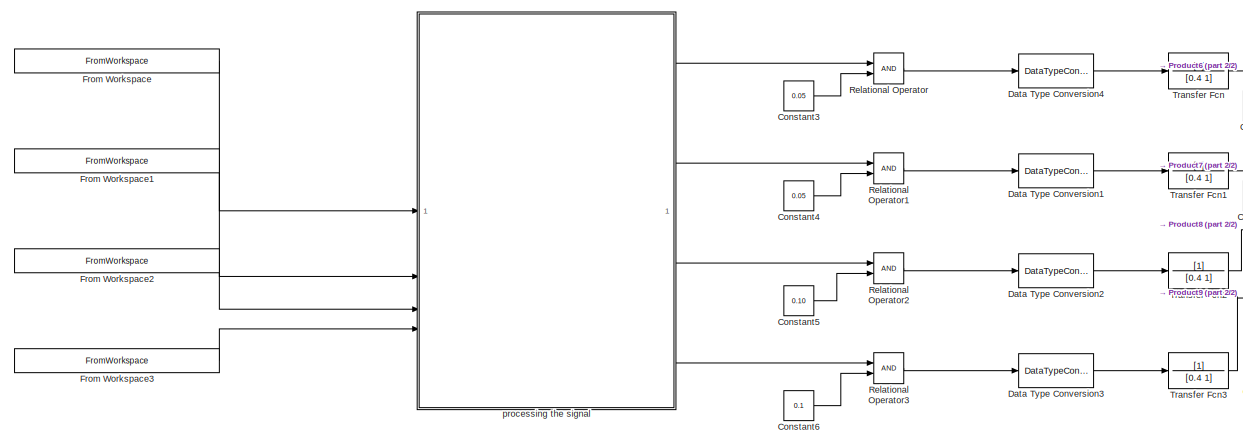
[diagram: root canvas - part 1/2, left side, full height]
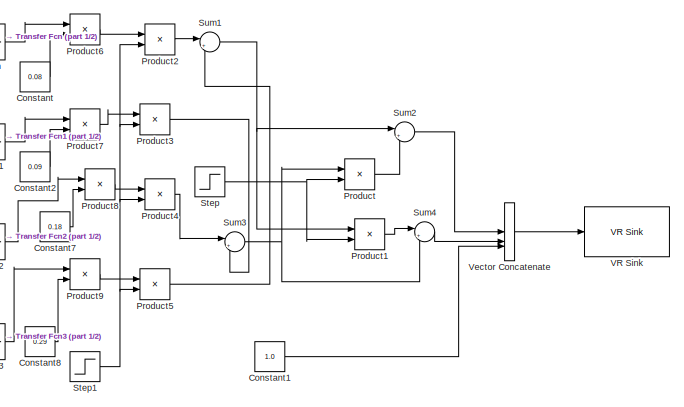
[diagram: root canvas - part 2/2, right side, full height]
MODEL slx_7b88e0eeb97f
KIND model
CONFIG AbsTol = auto
CONFIG EnableMultiTasking = off
CONFIG FixedStep = auto
CONFIG MaxStep = auto
CONFIG MinStep = auto
CONFIG RelTol = 1e-3
CONFIG SampleTimeConstraint = Unconstrained
CONFIG SolverName = VariableStepAuto
CONFIG StartTime = 0.0
CONFIG StopTime = 30.0
BLOCK [Constant] Constant
  Value = 0.08
BLOCK [Constant] Constant1
  Value = 1.0
BLOCK [Constant] Constant2
  Value = 0.09
BLOCK [Constant] Constant3
  Value = 0.05
BLOCK [Constant] Constant4
  Value = 0.05
BLOCK [Constant] Constant5
  Value = 0.10
BLOCK [Constant] Constant6
  Value = 0.1
BLOCK [Constant] Constant7
  Value = 0.18
BLOCK [Constant] Constant8
  Value = 0.29
BLOCK [DataTypeConversion] Data Type Conversion1
  OutDataTypeStr = double
  OutMax = [1000]
  OutMin = [0.2]
  RndMeth = Floor
  SaturateOnIntegerOverflow = off
BLOCK [DataTypeConversion] Data Type Conversion2
  OutDataTypeStr = double
  OutMax = [1000]
  OutMin = [0.2]
  RndMeth = Floor
  SaturateOnIntegerOverflow = off
BLOCK [DataTypeConversion] Data Type Conversion3
  OutDataTypeStr = double
  OutMax = [1000]
  OutMin = [0.2]
  RndMeth = Floor
  SaturateOnIntegerOverflow = off
BLOCK [DataTypeConversion] Data Type Conversion4
  OutDataTypeStr = double
  OutMax = [1000]
  OutMin = [0.2]
  RndMeth = Floor
  SaturateOnIntegerOverflow = off
BLOCK [FromWorkspace] From Workspace
  SampleTime = 1/1000
  VariableName = [ES2_emg.time,ES2_emg.signals(:,1)]
BLOCK [FromWorkspace] From Workspace1
  SampleTime = 1/1000
  VariableName = [ES2_emg.time,ES2_emg.signals(:,2)]
BLOCK [FromWorkspace] From Workspace2
  SampleTime = 1/1000
  VariableName = [ES2_emg.time,ES2_emg.signals(:,3)]
BLOCK [FromWorkspace] From Workspace3
  SampleTime = 1/1000
  VariableName = [ES2_emg.time,ES2_emg.signals(:,4)]
BLOCK [Product] Product
BLOCK [Product] Product1
BLOCK [Product] Product2
BLOCK [Product] Product3
BLOCK [Product] Product4
BLOCK [Product] Product5
BLOCK [Product] Product6
BLOCK [Product] Product7
BLOCK [Product] Product8
BLOCK [Product] Product9
BLOCK [RelationalOperator] Relational Operator
  InputSameDT = off
  OutDataTypeStr = boolean
  RndMeth = Simplest
BLOCK [RelationalOperator] Relational Operator1
  InputSameDT = off
  OutDataTypeStr = boolean
  RndMeth = Simplest
BLOCK [RelationalOperator] Relational Operator2
  InputSameDT = off
  OutDataTypeStr = boolean
  RndMeth = Simplest
BLOCK [RelationalOperator] Relational Operator3
  InputSameDT = off
  OutDataTypeStr = boolean
  RndMeth = Simplest
BLOCK [Step] Step
  SampleTime = 0
  Time = 15
BLOCK [Step] Step1
  After = ((2)^-0.5)
  Before = 1
  SampleTime = 0
  Time = 14
BLOCK [Sum] Sum1
  Inputs = |+-
BLOCK [Sum] Sum2
  Inputs = |+-
BLOCK [Sum] Sum3
  Inputs = |+-
BLOCK [Sum] Sum4
  Inputs = |++
BLOCK [TransferFcn] Transfer Fcn
  Denominator = [0.4 1]
BLOCK [TransferFcn] Transfer Fcn1
  Denominator = [0.4 1]
BLOCK [TransferFcn] Transfer Fcn2
  Denominator = [0.4 1]
BLOCK [TransferFcn] Transfer Fcn3
  Denominator = [0.4 1]
BLOCK [Reference] VR Sink  REF=vrlib/VR Sink
  InstantiateOnLoad = on
  SourceBlock = vrlib/VR Sink
  SourceType = Virtual Reality Sink
BLOCK [Concatenate] Vector Concatenate
  NumInputs = 3
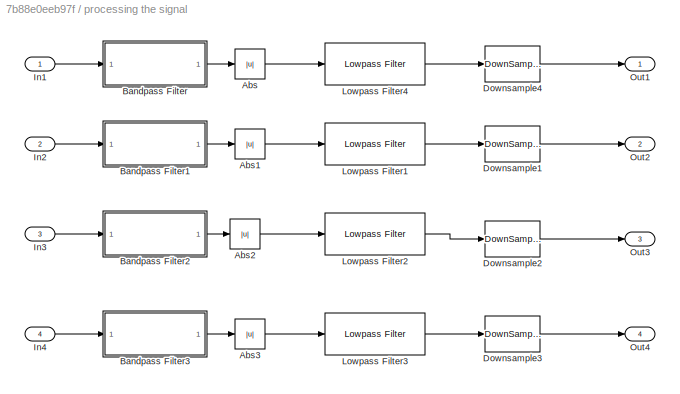
BLOCK [SubSystem] processing the signal
BLOCK [Abs] processing the signal/Abs
  SaturateOnIntegerOverflow = off
BLOCK [Abs] processing the signal/Abs1
  SaturateOnIntegerOverflow = off
BLOCK [Abs] processing the signal/Abs2
  SaturateOnIntegerOverflow = off
BLOCK [Abs] processing the signal/Abs3
  SaturateOnIntegerOverflow = off
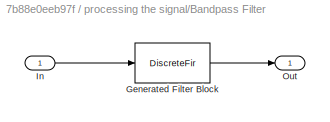
BLOCK [SubSystem] processing the signal/Bandpass Filter
  CopyFcn = fdesignblkfcn(gcbh, {'CopyFcn'});
  DialogController = fdesignblkfcn
  InitFcn = fdesignblkfcn(gcbh, {'InitFcn'});
  UserDataPersistent = on
BLOCK [DiscreteFir] processing the signal/Bandpass Filter/Generated Filter Block
  Coefficients = [0.0858980048566166249 0.0520786279754757025 -0.0994053436914434235 0.0135831519514875414 -0.0538866276248172876 0.00387436549081726384 -0.028401820868103278 0.00254018756536164092 -0.0104438154349616504 0.0024745447461073781 0.00401687504188876464 0.00235138339428692892 0.0153358382804895353 0.00309905498380235291 0.0226439192297243561 0.00584913788288324125 0.0251768114891905807 0.01108104721793...<+1868ch>  <repeated x4 — deduplicated; at blocks: Generated Filter Block>
  InputPortMap = u0
  InputProcessing = Columns as channels (frame based)
  OutputPortMap = o0
  Tag = BlockMethodSubSystem
BLOCK [Inport] processing the signal/Bandpass Filter/In
BLOCK [Outport] processing the signal/Bandpass Filter/Out
  VectorParamsAs1DForOutWhenUnconnected = off
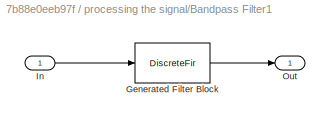
BLOCK [SubSystem] processing the signal/Bandpass Filter1
  CopyFcn = fdesignblkfcn(gcbh, {'CopyFcn'});
  DialogController = fdesignblkfcn
  InitFcn = fdesignblkfcn(gcbh, {'InitFcn'});
  UserDataPersistent = on
BLOCK [DiscreteFir] processing the signal/Bandpass Filter1/Generated Filter Block
  InputPortMap = u0
  InputProcessing = Columns as channels (frame based)
  OutputPortMap = o0
  Tag = BlockMethodSubSystem
BLOCK [Inport] processing the signal/Bandpass Filter1/In
BLOCK [Outport] processing the signal/Bandpass Filter1/Out
  VectorParamsAs1DForOutWhenUnconnected = off
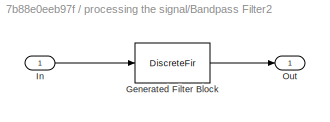
BLOCK [SubSystem] processing the signal/Bandpass Filter2
  CopyFcn = fdesignblkfcn(gcbh, {'CopyFcn'});
  DialogController = fdesignblkfcn
  InitFcn = fdesignblkfcn(gcbh, {'InitFcn'});
  UserDataPersistent = on
BLOCK [DiscreteFir] processing the signal/Bandpass Filter2/Generated Filter Block
  InputPortMap = u0
  InputProcessing = Columns as channels (frame based)
  OutputPortMap = o0
  Tag = BlockMethodSubSystem
BLOCK [Inport] processing the signal/Bandpass Filter2/In
BLOCK [Outport] processing the signal/Bandpass Filter2/Out
  VectorParamsAs1DForOutWhenUnconnected = off
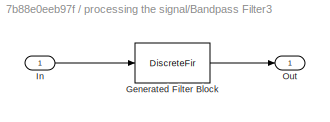
BLOCK [SubSystem] processing the signal/Bandpass Filter3
  CopyFcn = fdesignblkfcn(gcbh, {'CopyFcn'});
  DialogController = fdesignblkfcn
  InitFcn = fdesignblkfcn(gcbh, {'InitFcn'});
  UserDataPersistent = on
BLOCK [DiscreteFir] processing the signal/Bandpass Filter3/Generated Filter Block
  InputPortMap = u0
  InputProcessing = Columns as channels (frame based)
  OutputPortMap = o0
  Tag = BlockMethodSubSystem
BLOCK [Inport] processing the signal/Bandpass Filter3/In
BLOCK [Outport] processing the signal/Bandpass Filter3/Out
  VectorParamsAs1DForOutWhenUnconnected = off
BLOCK [DownSample] processing the signal/Downsample1
  InputProcessing = Elements as channels (sample based)
  N = 100
  RateOptions = Allow multirate processing
BLOCK [DownSample] processing the signal/Downsample2
  InputProcessing = Elements as channels (sample based)
  N = 100
  RateOptions = Allow multirate processing
BLOCK [DownSample] processing the signal/Downsample3
  InputProcessing = Elements as channels (sample based)
  N = 100
  RateOptions = Allow multirate processing
BLOCK [DownSample] processing the signal/Downsample4
  InputProcessing = Elements as channels (sample based)
  N = 100
  RateOptions = Allow multirate processing
BLOCK [Inport] processing the signal/In1
BLOCK [Inport] processing the signal/In2
  Port = 2
BLOCK [Inport] processing the signal/In3
  Port = 3
BLOCK [Inport] processing the signal/In4
  Port = 4
BLOCK [Reference] processing the signal/Lowpass Filter1  REF=dspfdesign/Lowpass Filter
  SourceBlock = dspfdesign/Lowpass Filter
  SourceType = dsp.simulink.LowpassFilter
BLOCK [Reference] processing the signal/Lowpass Filter2  REF=dspfdesign/Lowpass Filter
  SourceBlock = dspfdesign/Lowpass Filter
  SourceType = dsp.simulink.LowpassFilter
BLOCK [Reference] processing the signal/Lowpass Filter3  REF=dspfdesign/Lowpass Filter
  SourceBlock = dspfdesign/Lowpass Filter
  SourceType = dsp.simulink.LowpassFilter
BLOCK [Reference] processing the signal/Lowpass Filter4  REF=dspfdesign/Lowpass Filter
  SourceBlock = dspfdesign/Lowpass Filter
  SourceType = dsp.simulink.LowpassFilter
BLOCK [Outport] processing the signal/Out1
BLOCK [Outport] processing the signal/Out2
  Port = 2
BLOCK [Outport] processing the signal/Out3
  Port = 3
BLOCK [Outport] processing the signal/Out4
  Port = 4
LINE Constant1:1 -> Vector Concatenate:3
LINE Constant2:1 -> Product7:2
LINE Constant3:1 -> Relational Operator:2
LINE Constant4:1 -> Relational Operator1:2
LINE Constant5:1 -> Relational Operator2:2
LINE Constant6:1 -> Relational Operator3:2
LINE Constant7:1 -> Product8:2
LINE Constant8:1 -> Product9:2
LINE Constant:1 -> Product6:2
LINE Data Type Conversion1:1 -> Transfer Fcn1:1
LINE Data Type Conversion2:1 -> Transfer Fcn2:1
LINE Data Type Conversion3:1 -> Transfer Fcn3:1
LINE Data Type Conversion4:1 -> Transfer Fcn:1
LINE From Workspace1:1 -> processing the signal:2
LINE From Workspace2:1 -> processing the signal:3
LINE From Workspace3:1 -> processing the signal:4
LINE From Workspace:1 -> processing the signal:1
LINE Product1:1 -> Sum4:1
LINE Product2:1 -> Sum1:1
LINE Product3:1 -> Sum3:2
LINE Product4:1 -> Sum3:1
LINE Product5:1 -> Sum1:2
LINE Product6:1 -> Product2:1
LINE Product7:1 -> Product3:1
LINE Product8:1 -> Product4:1
LINE Product9:1 -> Product5:1
LINE Product:1 -> Sum2:2
LINE Relational Operator1:1 -> Data Type Conversion1:1
LINE Relational Operator2:1 -> Data Type Conversion2:1
LINE Relational Operator3:1 -> Data Type Conversion3:1
LINE Relational Operator:1 -> Data Type Conversion4:1
NET Step1:1 -> Product2:2, Product3:2, Product4:2, Product5:2
NET Step:1 -> Product1:2, Product:2
NET Sum1:1 -> Product1:1, Sum2:1
LINE Sum2:1 -> Vector Concatenate:1
NET Sum3:1 -> Product:1, Sum4:2
LINE Sum4:1 -> Vector Concatenate:2
LINE Transfer Fcn1:1 -> Product7:1
LINE Transfer Fcn2:1 -> Product8:1
LINE Transfer Fcn3:1 -> Product9:1
LINE Transfer Fcn:1 -> Product6:1
LINE Vector Concatenate:1 -> VR Sink:1
LINE processing the signal/Abs1:1 -> processing the signal/Lowpass Filter1:1
LINE processing the signal/Abs2:1 -> processing the signal/Lowpass Filter2:1
LINE processing the signal/Abs3:1 -> processing the signal/Lowpass Filter3:1
LINE processing the signal/Abs:1 -> processing the signal/Lowpass Filter4:1
LINE processing the signal/Bandpass Filter1:1 -> processing the signal/Abs1:1
LINE processing the signal/Bandpass Filter2:1 -> processing the signal/Abs2:1
LINE processing the signal/Bandpass Filter3:1 -> processing the signal/Abs3:1
LINE processing the signal/Bandpass Filter:1 -> processing the signal/Abs:1
LINE processing the signal/Downsample1:1 -> processing the signal/Out2:1
LINE processing the signal/Downsample2:1 -> processing the signal/Out3:1
LINE processing the signal/Downsample3:1 -> processing the signal/Out4:1
LINE processing the signal/Downsample4:1 -> processing the signal/Out1:1
LINE processing the signal/In1:1 -> processing the signal/Bandpass Filter:1
LINE processing the signal/In2:1 -> processing the signal/Bandpass Filter1:1
LINE processing the signal/In3:1 -> processing the signal/Bandpass Filter2:1
LINE processing the signal/In4:1 -> processing the signal/Bandpass Filter3:1
LINE processing the signal/Lowpass Filter1:1 -> processing the signal/Downsample1:1
LINE processing the signal/Lowpass Filter2:1 -> processing the signal/Downsample2:1
LINE processing the signal/Lowpass Filter3:1 -> processing the signal/Downsample3:1
LINE processing the signal/Lowpass Filter4:1 -> processing the signal/Downsample4:1
LINE processing the signal:1 -> Relational Operator:1
LINE processing the signal:2 -> Relational Operator1:1
LINE processing the signal:3 -> Relational Operator2:1
LINE processing the signal:4 -> Relational Operator3:1
note: NET lines group one-source signal fan-out (src -> all destinations, sorted); 1:1 wires keep LINE
